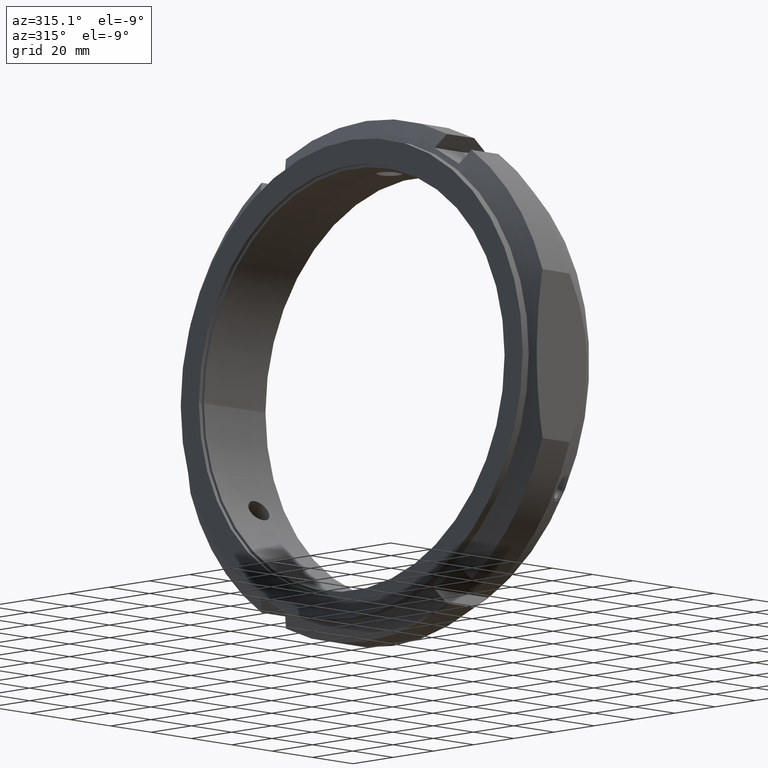
[diagram: clean part render]
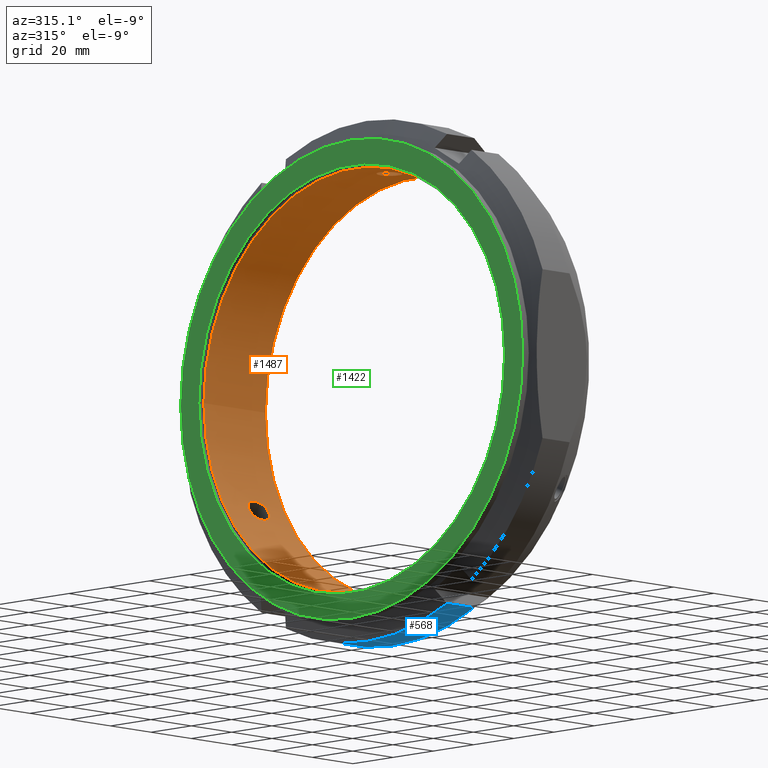
[diagram: same view with three faces highlighted in distinct colors, each labeled with its STEP entity id]
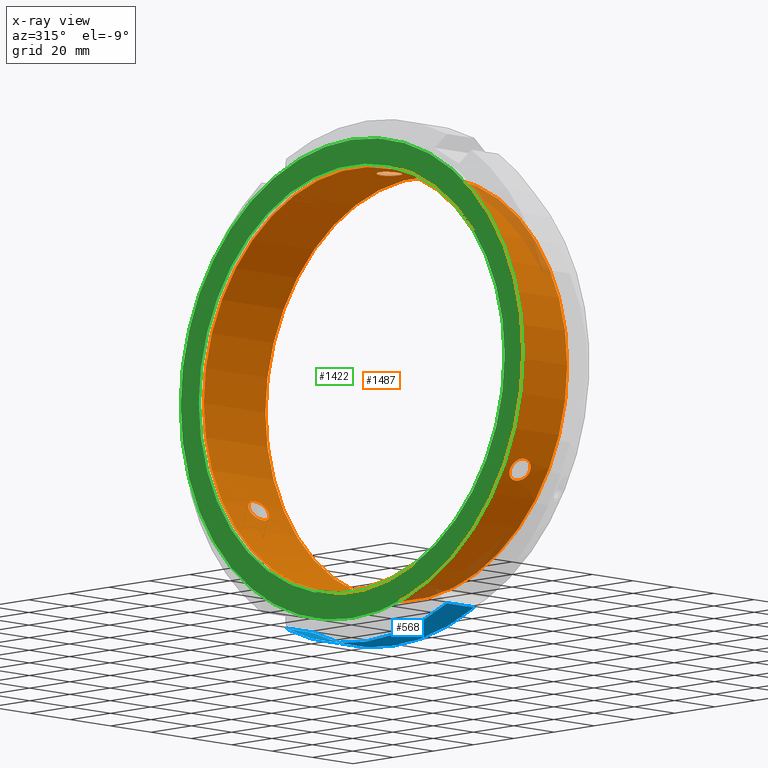
[diagram: x-ray of the same camera — body ghosted, the three highlighted faces saturated]
A machine part, auxiliary view with three faces highlighted in distinct colors.
The next image is the same camera in x-ray (body ghosted, the three faces saturated) — at least one of them is partly hidden behind the body in this view.
Their STEP definitions:

[orange] entity #1487 — the highlighted cylindrical surface (bore or boss wall) has radius 75 mm, axis along (1, 0, 0).
#1090=CARTESIAN_POINT('',(18.633708515462828,66.944562773194164,-33.814575483153192));
#1091=VERTEX_POINT('',#1090);
#1092=CARTESIAN_POINT('',(18.633708515462828,66.944562773194164,-33.814575483153192));
#1093=CARTESIAN_POINT('',(19.252819589740181,66.944562773194164,-33.814575483153192));
#1094=CARTESIAN_POINT('',(19.918122021158336,66.895808431503866,-33.911681076916068));
#1095=CARTESIAN_POINT('',(21.158565948042277,66.689769508082804,-34.315097877880099));
#1096=CARTESIAN_POINT('',(21.733712694719863,66.532246731813288,-34.621271237273348));
#1097=CARTESIAN_POINT('',(22.581438101439943,66.174917197246856,-35.2987742373533));
#1098=CARTESIAN_POINT('',(22.934759049865647,65.963936719007833,-35.693243755170137));
#1099=CARTESIAN_POINT('',(23.413109060764732,65.483554138749781,-36.567099083760041));
#1100=CARTESIAN_POINT('',(23.537156043954276,65.213605616814917,-37.046721726917447));
#1101=CARTESIAN_POINT('',(23.537156043954276,64.690204950850841,-37.953278273082631));
#1102=CARTESIAN_POINT('',(23.413109060764729,64.409813818613713,-38.426871872370995));
#1103=CARTESIAN_POINT('',(22.934759049865644,63.893224194951486,-39.279823054704934));
#1104=CARTESIAN_POINT('',(22.581438101439943,63.65709381062301,-39.659772267470927));
#1105=CARTESIAN_POINT('',(21.733712694719863,63.249023768696816,-40.307980221967902));
#1106=CARTESIAN_POINT('',(21.158565948042273,63.062631249635004,-40.597485627588583));
#1107=CARTESIAN_POINT('',(19.918122021158332,62.816281513397229,-40.977628969921625));
#1108=CARTESIAN_POINT('',(19.252819589740181,62.756562773194169,-41.068404265251665));
#1109=CARTESIAN_POINT('',(18.028121635121479,62.756562773194169,-41.068404265251665));
#1110=CARTESIAN_POINT('',(17.376591681214713,62.813907943978634,-40.981247328273149));
#1111=CARTESIAN_POINT('',(16.166028352496927,63.056338675684472,-40.607238476435768));
#1112=CARTESIAN_POINT('',(15.607137671894444,63.241402729376048,-40.319910924102402));
#1113=CARTESIAN_POINT('',(14.782030898457069,63.650698170622313,-39.670075958398755));
#1114=CARTESIAN_POINT('',(14.440229586078859,63.88976884553248,-39.285488292455298));
#1115=CARTESIAN_POINT('',(13.981732908347478,64.410075270822489,-38.426479895971227));
#1116=CARTESIAN_POINT('',(13.865384334489661,64.691092161664145,-37.951741578876977));
#1117=CARTESIAN_POINT('',(13.865384334489661,65.212718406001628,-37.048258421123101));
#1118=CARTESIAN_POINT('',(13.981732908347475,65.483345403334297,-36.567521496214589));
#1119=CARTESIAN_POINT('',(14.440229586078864,65.967115284108644,-35.687418715919122));
#1120=CARTESIAN_POINT('',(14.782030898457066,66.180642635342764,-35.288083605175295));
#1121=CARTESIAN_POINT('',(15.607137671894446,66.538768503286363,-34.608705872551056));
#1122=CARTESIAN_POINT('',(16.166028352496927,66.695069435968477,-34.304771924560157));
#1123=CARTESIAN_POINT('',(17.376591681214713,66.897755237046979,-33.907816326326156));
#1124=CARTESIAN_POINT('',(18.028121635121487,66.944562773194164,-33.814575483153199));
#1125=CARTESIAN_POINT('',(18.633708515462835,66.944562773194164,-33.814575483153199));
#1126=B_SPLINE_CURVE_WITH_KNOTS('',3,(#1092,#1093,#1094,#1095,#1096,#1097,#1098,#1099,#1100,#1101,#1102,#1103,#1104,#1105,#1106,#1107,#1108,#1109,#1110,#1111,#1112,#1113,#1114,#1115,#1116,#1117,#1118,#1119,#1120,#1121,#1122,#1123,#1124,#1125),.UNSPECIFIED.,.T.,.U.,(4,2,2,2,2,2,2,2,2,2,2,2,2,2,2,2,4),(0.0,0.185733322283205,0.37146664456641,0.528486844355637,0.685507044144863,0.84252724393409,0.999547443723316,1.185280766006521,1.371014088289726,1.552690152392132,1.734366216494538,1.890854089795786,2.047341963097035,2.203829836398285,2.360317709699534,2.54199377380194,2.723669837904345),.UNSPECIFIED.);
#1127=EDGE_CURVE('',#1091,#1091,#1126,.T.);
#1180=CARTESIAN_POINT('',(18.633708515462832,-62.756562773194197,-41.068404265251601));
#1181=VERTEX_POINT('',#1180);
#1182=CARTESIAN_POINT('',(18.633708515462832,-62.756562773194197,-41.068404265251601));
#1183=CARTESIAN_POINT('',(19.252819589740181,-62.756562773194197,-41.068404265251601));
#1184=CARTESIAN_POINT('',(19.918122021158339,-62.81628151339725,-40.977628969921582));
#1185=CARTESIAN_POINT('',(21.158565948042281,-63.062631249635032,-40.59748562758854));
#1186=CARTESIAN_POINT('',(21.733712694719863,-63.249023768696858,-40.307980221967838));
#1187=CARTESIAN_POINT('',(22.581438101439943,-63.657093810623039,-39.659772267470863));
#1188=CARTESIAN_POINT('',(22.934759049865644,-63.893224194951515,-39.279823054704877));
#1189=CARTESIAN_POINT('',(23.413109060764732,-64.409813818613742,-38.426871872370945));
#1190=CARTESIAN_POINT('',(23.537156043954273,-64.69020495085087,-37.953278273082574));
#1191=CARTESIAN_POINT('',(23.537156043954273,-65.213605616814931,-37.046721726917383));
#1192=CARTESIAN_POINT('',(23.413109060764732,-65.483554138749824,-36.567099083759985));
#1193=CARTESIAN_POINT('',(22.934759049865651,-65.963936719007876,-35.693243755170087));
#1194=CARTESIAN_POINT('',(22.581438101439943,-66.17491719724687,-35.298774237353243));
#1195=CARTESIAN_POINT('',(21.733712694719863,-66.532246731813302,-34.621271237273291));
#1196=CARTESIAN_POINT('',(21.158565948042273,-66.689769508082847,-34.315097877880042));
#1197=CARTESIAN_POINT('',(19.918122021158332,-66.895808431503895,-33.911681076916011));
#1198=CARTESIAN_POINT('',(19.252819589740181,-66.944562773194193,-33.814575483153149));
#1199=CARTESIAN_POINT('',(18.047119688579709,-66.944562773194193,-33.814575483153149));
#1200=CARTESIAN_POINT('',(17.415141098784346,-66.900620828119756,-33.902078642281303));
#1201=CARTESIAN_POINT('',(16.235238551009409,-66.709931831499517,-34.275778598842848));
#1202=CARTESIAN_POINT('',(15.687464865582243,-66.562771913415332,-34.562239009441413));
#1203=CARTESIAN_POINT('',(14.842939176366304,-66.215244160303001,-35.223141775130202));
#1204=CARTESIAN_POINT('',(14.479233307022604,-65.997977917486978,-35.63050567904704));
#1205=CARTESIAN_POINT('',(13.990290569106481,-65.501696592596247,-36.53482951550582));
#1206=CARTESIAN_POINT('',(13.865384334489658,-65.222257844264192,-37.031735629376662));
#1207=CARTESIAN_POINT('',(13.865384334489658,-64.681552723401623,-37.968264370623302));
#1208=CARTESIAN_POINT('',(13.990290569106474,-64.390938779659706,-38.458718482416003));
#1209=CARTESIAN_POINT('',(14.479233307022595,-63.855912026483956,-39.340672635424554));
#1210=CARTESIAN_POINT('',(14.842939176366304,-63.611757658515195,-39.732512673046465));
#1211=CARTESIAN_POINT('',(15.687464865582243,-63.213162950553475,-40.363931918606269));
#1212=CARTESIAN_POINT('',(16.235238551009409,-63.038660916838666,-40.634606351385294));
#1213=CARTESIAN_POINT('',(17.415141098784343,-62.810371759373353,-40.986597844961366));
#1214=CARTESIAN_POINT('',(18.047119688579713,-62.756562773194197,-41.068404265251601));
#1215=CARTESIAN_POINT('',(18.633708515462835,-62.756562773194197,-41.068404265251601));
#1216=B_SPLINE_CURVE_WITH_KNOTS('',3,(#1182,#1183,#1184,#1185,#1186,#1187,#1188,#1189,#1190,#1191,#1192,#1193,#1194,#1195,#1196,#1197,#1198,#1199,#1200,#1201,#1202,#1203,#1204,#1205,#1206,#1207,#1208,#1209,#1210,#1211,#1212,#1213,#1214,#1215),.UNSPECIFIED.,.T.,.U.,(4,2,2,2,2,2,2,2,2,2,2,2,2,2,2,2,4),(0.0,0.185733322283205,0.37146664456641,0.528486844355636,0.685507044144862,0.842527243934088,0.999547443723314,1.185280766006519,1.371014088289724,1.546990736354661,1.722967384419597,1.885178920678368,2.047390456937138,2.209601993195908,2.371813529454677,2.547790177519614,2.723766825584551),.UNSPECIFIED.);
#1217=EDGE_CURVE('',#1181,#1181,#1216,.T.);
#1270=CARTESIAN_POINT('',(18.633708515462832,-4.188,74.882979748404779));
#1271=VERTEX_POINT('',#1270);
#1272=CARTESIAN_POINT('',(18.633708515462832,-4.188,74.882979748404779));
#1273=CARTESIAN_POINT('',(19.252819589740181,-4.188,74.882979748404779));
#1274=CARTESIAN_POINT('',(19.918122021158339,-4.07952691810663,74.889310046837608));
#1275=CARTESIAN_POINT('',(21.158565948042281,-3.627138258447805,74.912583505468604));
#1276=CARTESIAN_POINT('',(21.733712694719863,-3.283222963116462,74.929251459241172));
#1277=CARTESIAN_POINT('',(22.581438101439943,-2.517823386623837,74.958546504824142));
#1278=CARTESIAN_POINT('',(22.934759049865644,-2.07071252405635,74.973066809874979));
#1279=CARTESIAN_POINT('',(23.413109060764729,-1.073740320136075,74.993970956130937));
#1280=CARTESIAN_POINT('',(23.537156043954283,-0.523400665964088,75.0));
#1281=CARTESIAN_POINT('',(23.537156043954283,0.523400665964088,75.0));
#1282=CARTESIAN_POINT('',(23.413109060764729,1.073740320136076,74.993970956130937));
#1283=CARTESIAN_POINT('',(22.934759049865644,2.07071252405635,74.973066809874979));
#1284=CARTESIAN_POINT('',(22.581438101439943,2.517823386623837,74.958546504824142));
#1285=CARTESIAN_POINT('',(21.733712694719863,3.283222963116462,74.929251459241172));
#1286=CARTESIAN_POINT('',(21.158565948042281,3.627138258447805,74.912583505468604));
#1287=CARTESIAN_POINT('',(19.918122021158339,4.07952691810663,74.889310046837608));
#1288=CARTESIAN_POINT('',(19.252819589740184,4.188,74.882979748404779));
#1289=CARTESIAN_POINT('',(18.028121635121479,4.188,74.882979748404779));
#1290=CARTESIAN_POINT('',(17.376591681214709,4.083847293068336,74.889063654599227));
#1291=CARTESIAN_POINT('',(16.16602835249693,3.638730760283994,74.912010400995854));
#1292=CARTESIAN_POINT('',(15.607137671894446,3.297365773910317,74.928616796653401));
#1293=CARTESIAN_POINT('',(14.782030898457069,2.529944464720449,74.958159563573986));
#1294=CARTESIAN_POINT('',(14.440229586078866,2.077346438576161,74.972907008374364));
#1295=CARTESIAN_POINT('',(13.981732908347484,1.073270132511809,74.994001392185751));
#1296=CARTESIAN_POINT('',(13.865384334489665,0.521626244337497,75.0));
#1297=CARTESIAN_POINT('',(13.865384334489663,-0.521626244337496,75.0));
#1298=CARTESIAN_POINT('',(13.981732908347482,-1.073270132511808,74.994001392185751));
#1299=CARTESIAN_POINT('',(14.440229586078864,-2.077346438576158,74.972907008374364));
#1300=CARTESIAN_POINT('',(14.782030898457069,-2.529944464720447,74.958159563573986));
#1301=CARTESIAN_POINT('',(15.607137671894446,-3.297365773910317,74.928616796653401));
#1302=CARTESIAN_POINT('',(16.16602835249693,-3.638730760283994,74.912010400995854));
#1303=CARTESIAN_POINT('',(17.376591681214709,-4.083847293068336,74.889063654599227));
#1304=CARTESIAN_POINT('',(18.028121635121483,-4.188,74.882979748404779));
#1305=CARTESIAN_POINT('',(18.633708515462835,-4.188,74.882979748404779));
#1306=B_SPLINE_CURVE_WITH_KNOTS('',3,(#1272,#1273,#1274,#1275,#1276,#1277,#1278,#1279,#1280,#1281,#1282,#1283,#1284,#1285,#1286,#1287,#1288,#1289,#1290,#1291,#1292,#1293,#1294,#1295,#1296,#1297,#1298,#1299,#1300,#1301,#1302,#1303,#1304,#1305),.UNSPECIFIED.,.T.,.U.,(4,2,2,2,2,2,2,2,2,2,2,2,2,2,2,2,4),(0.0,0.185733322283205,0.37146664456641,0.528486844355636,0.685507044144863,0.842527243934089,0.999547443723315,1.18528076600652,1.371014088289725,1.552690152392131,1.734366216494536,1.890854089795785,2.047341963097034,2.203829836398283,2.360317709699532,2.541993773801938,2.723669837904343),.UNSPECIFIED.);
#1307=EDGE_CURVE('',#1271,#1271,#1306,.T.);
#1371=CARTESIAN_POINT('',(1.499999999999978,75.0,0.0));
#1372=VERTEX_POINT('',#1371);
#1373=CARTESIAN_POINT('',(1.499999999999978,0.0,0.0));
#1374=DIRECTION('',(1.0,0.0,0.0));
#1375=DIRECTION('',(0.0,1.0,0.0));
#1376=AXIS2_PLACEMENT_3D('',#1373,#1374,#1375);
#1377=CIRCLE('',#1376,75.0);
#1378=EDGE_CURVE('',#1372,#1372,#1377,.T.);
#1455=CARTESIAN_POINT('',(31.999999999999986,75.0,0.0));
#1456=VERTEX_POINT('',#1455);
#1457=CARTESIAN_POINT('',(31.999999999999986,0.0,0.0));
#1458=DIRECTION('',(1.0,0.0,0.0));
#1459=DIRECTION('',(0.0,1.0,0.0));
#1460=AXIS2_PLACEMENT_3D('',#1457,#1458,#1459);
#1461=CIRCLE('',#1460,75.0);
#1462=EDGE_CURVE('',#1456,#1456,#1461,.T.);
#1467=CARTESIAN_POINT('',(16.749999999999979,0.0,0.0));
#1468=DIRECTION('',(1.0,0.0,0.0));
#1469=DIRECTION('',(0.0,1.0,0.0));
#1470=AXIS2_PLACEMENT_3D('',#1467,#1468,#1469);
#1471=CYLINDRICAL_SURFACE('',#1470,75.0);
#1472=ORIENTED_EDGE('',*,*,#1378,.F.);
#1473=EDGE_LOOP('',(#1472));
#1474=FACE_OUTER_BOUND('',#1473,.T.);
#1475=ORIENTED_EDGE('',*,*,#1127,.T.);
#1476=EDGE_LOOP('',(#1475));
#1477=FACE_BOUND('',#1476,.T.);
#1478=ORIENTED_EDGE('',*,*,#1217,.T.);
#1479=EDGE_LOOP('',(#1478));
#1480=FACE_BOUND('',#1479,.T.);
#1481=ORIENTED_EDGE('',*,*,#1307,.T.);
#1482=EDGE_LOOP('',(#1481));
#1483=FACE_BOUND('',#1482,.T.);
#1484=ORIENTED_EDGE('',*,*,#1462,.T.);
#1485=EDGE_LOOP('',(#1484));
#1486=FACE_BOUND('',#1485,.T.);
#1487=ADVANCED_FACE('',(#1474,#1477,#1480,#1483,#1486),#1471,.F.);

[blue] entity #568 — the highlighted cylindrical surface (partial cylindrical patch) has radius 92.5 mm, axis along (1, 0, 0).
#127=CARTESIAN_POINT('',(7.33012701892216,40.05519959243864,-83.377640801415708));
#128=VERTEX_POINT('',#127);
#143=CARTESIAN_POINT('',(20.741669750802277,40.05519959243864,-83.377640801415708));
#144=VERTEX_POINT('',#143);
#158=CARTESIAN_POINT('',(7.330127018922161,40.05519959243864,-83.377640801415708));
#159=DIRECTION('',(1.0,0.0,0.0));
#160=VECTOR('',#159,13.411542731880116);
#161=LINE('',#158,#160);
#162=EDGE_CURVE('',#128,#144,#161,.T.);
#271=CARTESIAN_POINT('',(7.330127018922168,-40.055199592438491,-83.377640801415808));
#272=VERTEX_POINT('',#271);
#288=CARTESIAN_POINT('',(20.741669750802252,-40.055199592438491,-83.377640801415808));
#289=VERTEX_POINT('',#288);
#290=CARTESIAN_POINT('',(20.741669750802252,-40.055199592438484,-83.377640801415794));
#291=DIRECTION('',(-1.0,0.0,0.0));
#292=VECTOR('',#291,13.411542731880084);
#293=LINE('',#290,#292);
#294=EDGE_CURVE('',#289,#272,#293,.T.);
#375=CARTESIAN_POINT('',(7.330127018922159,0.0,0.0));
#376=DIRECTION('',(1.0,0.0,0.0));
#377=DIRECTION('',(0.0,1.0,0.0));
#378=AXIS2_PLACEMENT_3D('',#375,#376,#377);
#379=CIRCLE('',#378,92.5);
#380=EDGE_CURVE('',#272,#128,#379,.T.);
#551=CARTESIAN_POINT('',(14.035898384862209,0.0,0.0));
#552=DIRECTION('',(1.0,0.0,0.0));
#553=DIRECTION('',(0.0,1.0,0.0));
#554=AXIS2_PLACEMENT_3D('',#551,#552,#553);
#555=CYLINDRICAL_SURFACE('',#554,92.5);
#556=ORIENTED_EDGE('',*,*,#162,.T.);
#557=CARTESIAN_POINT('',(20.741669750802259,0.0,0.0));
#558=DIRECTION('',(1.0,0.0,0.0));
#559=DIRECTION('',(0.0,1.0,0.0));
#560=AXIS2_PLACEMENT_3D('',#557,#558,#559);
#561=CIRCLE('',#560,92.5);
#562=EDGE_CURVE('',#289,#144,#561,.T.);
#563=ORIENTED_EDGE('',*,*,#562,.F.);
#564=ORIENTED_EDGE('',*,*,#294,.T.);
#565=ORIENTED_EDGE('',*,*,#380,.T.);
#566=EDGE_LOOP('',(#556,#563,#564,#565));
#567=FACE_OUTER_BOUND('',#566,.T.);
#568=ADVANCED_FACE('',(#567),#555,.T.);

[green] entity #1422 — the highlighted planar face has unit normal (-1, 0, 0).
#1388=CARTESIAN_POINT('',(-2.248202E-014,76.0,0.0));
#1389=VERTEX_POINT('',#1388);
#1390=CARTESIAN_POINT('',(-2.248202E-014,0.0,0.0));
#1391=DIRECTION('',(1.0,0.0,0.0));
#1392=DIRECTION('',(0.0,1.0,0.0));
#1393=AXIS2_PLACEMENT_3D('',#1390,#1391,#1392);
#1394=CIRCLE('',#1393,76.0);
#1395=EDGE_CURVE('',#1389,#1389,#1394,.T.);
#1403=CARTESIAN_POINT('',(-2.456368E-014,80.5,0.0));
#1404=DIRECTION('',(-1.0,0.0,0.0));
#1405=DIRECTION('',(0.0,0.0,1.0));
#1406=AXIS2_PLACEMENT_3D('',#1403,#1404,#1405);
#1407=PLANE('',#1406);
#1408=CARTESIAN_POINT('',(-2.664535E-014,85.0,0.0));
#1409=VERTEX_POINT('',#1408);
#1410=CARTESIAN_POINT('',(-2.664535E-014,0.0,0.0));
#1411=DIRECTION('',(1.0,0.0,0.0));
#1412=DIRECTION('',(0.0,1.0,0.0));
#1413=AXIS2_PLACEMENT_3D('',#1410,#1411,#1412);
#1414=CIRCLE('',#1413,85.0);
#1415=EDGE_CURVE('',#1409,#1409,#1414,.T.);
#1416=ORIENTED_EDGE('',*,*,#1415,.F.);
#1417=EDGE_LOOP('',(#1416));
#1418=FACE_OUTER_BOUND('',#1417,.T.);
#1419=ORIENTED_EDGE('',*,*,#1395,.T.);
#1420=EDGE_LOOP('',(#1419));
#1421=FACE_BOUND('',#1420,.T.);
#1422=ADVANCED_FACE('',(#1418,#1421),#1407,.T.);